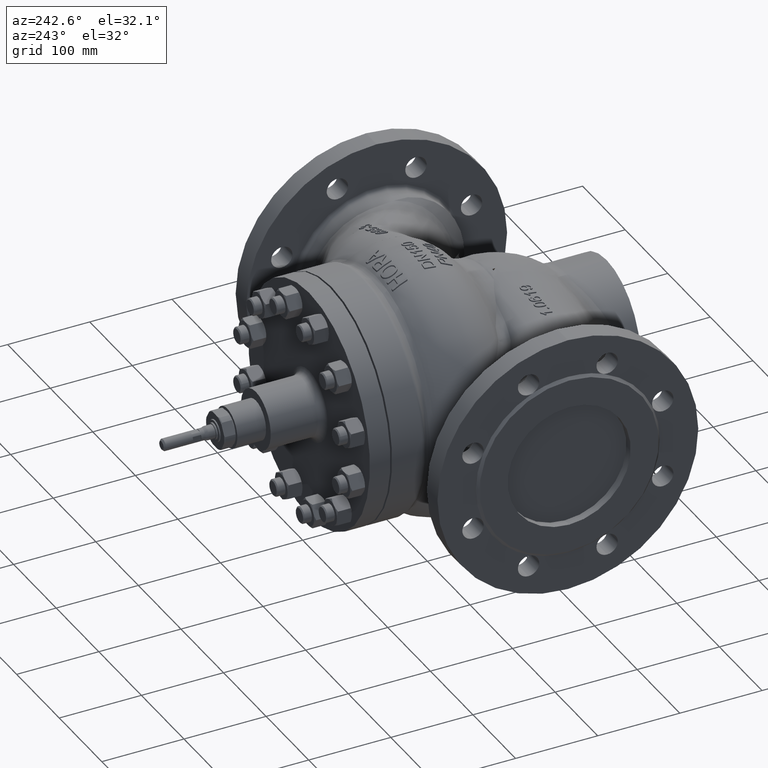
[diagram: clean part render]
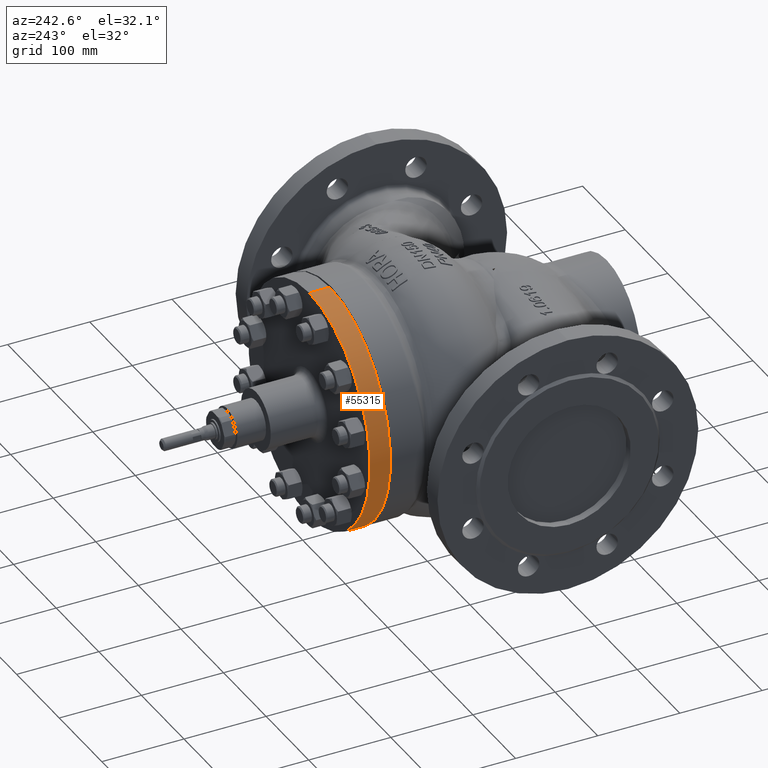
[diagram: same view with one face highlighted and labeled with its STEP entity id]
A machine part, auxiliary view. The second image highlights one B-rep face of the part: STEP entity #55315.
In plain terms, the highlighted cylindrical surface (partial cylindrical patch) has radius 142.5 mm, axis along (-0, 1, -0).
Its self-contained STEP definition (entity closure, byte-faithful):
#2402 = FACE_OUTER_BOUND ( 'NONE', #196488, .T. ) ;
#4105 = CARTESIAN_POINT ( 'NONE',  ( 0.0000000000000000000, 192.0000000000000300, 142.5000000000000000 ) ) ;
#12357 = LINE ( 'NONE', #127450, #127126 ) ;
#18590 = ORIENTED_EDGE ( 'NONE', *, *, #196576, .T. ) ;
#19903 = AXIS2_PLACEMENT_3D ( 'NONE', #166407, #72927, #182115 ) ;
#21734 = CARTESIAN_POINT ( 'NONE',  ( 1.745121688784978100E-014, 167.0000000000000300, -142.5000000000000000 ) ) ;
#22651 = EDGE_CURVE ( 'NONE', #72982, #144626, #106310, .T. ) ;
#22976 = LINE ( 'NONE', #199690, #189045 ) ;
#23126 = CARTESIAN_POINT ( 'NONE',  ( 1.745121688784978100E-014, 192.0000000000000300, -142.5000000000000000 ) ) ;
#47677 = VERTEX_POINT ( 'NONE', #23126 ) ;
#48501 = AXIS2_PLACEMENT_3D ( 'NONE', #65437, #145832, #66109 ) ;
#50011 = EDGE_CURVE ( 'NONE', #72982, #47677, #12357, .T. ) ;
#55315 = ADVANCED_FACE ( 'NONE', ( #2402 ), #158684, .T. ) ;
#65437 = CARTESIAN_POINT ( 'NONE',  ( 0.0000000000000000000, 292.0000000000000600, 0.0000000000000000000 ) ) ;
#66109 = DIRECTION ( 'NONE',  ( 0.0000000000000000000, 0.0000000000000000000, 1.000000000000000000 ) ) ;
#68497 = CARTESIAN_POINT ( 'NONE',  ( 0.0000000000000000000, 167.0000000000000300, 142.5000000000000000 ) ) ;
#72927 = DIRECTION ( 'NONE',  ( -0.0000000000000000000, 1.000000000000000000, -0.0000000000000000000 ) ) ;
#72982 = VERTEX_POINT ( 'NONE', #21734 ) ;
#74354 = DIRECTION ( 'NONE',  ( -0.0000000000000000000, 1.000000000000000000, -0.0000000000000000000 ) ) ;
#96058 = DIRECTION ( 'NONE',  ( -0.0000000000000000000, 1.000000000000000000, -0.0000000000000000000 ) ) ;
#96754 = EDGE_CURVE ( 'NONE', #47677, #193405, #128308, .T. ) ;
#106310 = CIRCLE ( 'NONE', #178443, 142.5000000000000000 ) ;
#127126 = VECTOR ( 'NONE', #96058, 1000.000000000000000 ) ;
#127450 = CARTESIAN_POINT ( 'NONE',  ( 1.745121688784978100E-014, 292.0000000000000600, -142.5000000000000000 ) ) ;
#128308 = CIRCLE ( 'NONE', #19903, 142.5000000000000000 ) ;
#137543 = ORIENTED_EDGE ( 'NONE', *, *, #50011, .F. ) ;
#144626 = VERTEX_POINT ( 'NONE', #68497 ) ;
#145832 = DIRECTION ( 'NONE',  ( -0.0000000000000000000, 1.000000000000000000, -0.0000000000000000000 ) ) ;
#158684 = CYLINDRICAL_SURFACE ( 'NONE', #48501, 142.5000000000000000 ) ;
#166407 = CARTESIAN_POINT ( 'NONE',  ( 0.0000000000000000000, 192.0000000000000300, 0.0000000000000000000 ) ) ;
#167845 = CARTESIAN_POINT ( 'NONE',  ( 0.0000000000000000000, 167.0000000000000300, 0.0000000000000000000 ) ) ;
#176612 = ORIENTED_EDGE ( 'NONE', *, *, #22651, .T. ) ;
#178443 = AXIS2_PLACEMENT_3D ( 'NONE', #167845, #74354, #183530 ) ;
#182115 = DIRECTION ( 'NONE',  ( 0.0000000000000000000, 0.0000000000000000000, 1.000000000000000000 ) ) ;
#182932 = ORIENTED_EDGE ( 'NONE', *, *, #96754, .F. ) ;
#183530 = DIRECTION ( 'NONE',  ( 0.0000000000000000000, 0.0000000000000000000, 1.000000000000000000 ) ) ;
#184022 = DIRECTION ( 'NONE',  ( -0.0000000000000000000, 1.000000000000000000, -0.0000000000000000000 ) ) ;
#189045 = VECTOR ( 'NONE', #184022, 1000.000000000000000 ) ;
#193405 = VERTEX_POINT ( 'NONE', #4105 ) ;
#196488 = EDGE_LOOP ( 'NONE', ( #137543, #176612, #18590, #182932 ) ) ;
#196576 = EDGE_CURVE ( 'NONE', #144626, #193405, #22976, .T. ) ;
#199690 = CARTESIAN_POINT ( 'NONE',  ( 0.0000000000000000000, 292.0000000000000600, 142.5000000000000000 ) ) ;